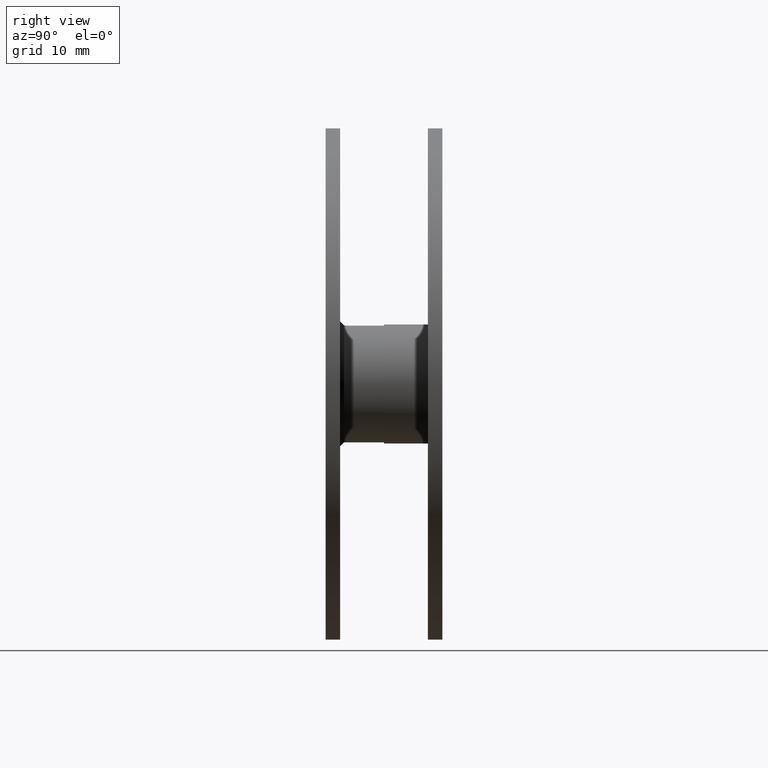
[diagram: clean part render]
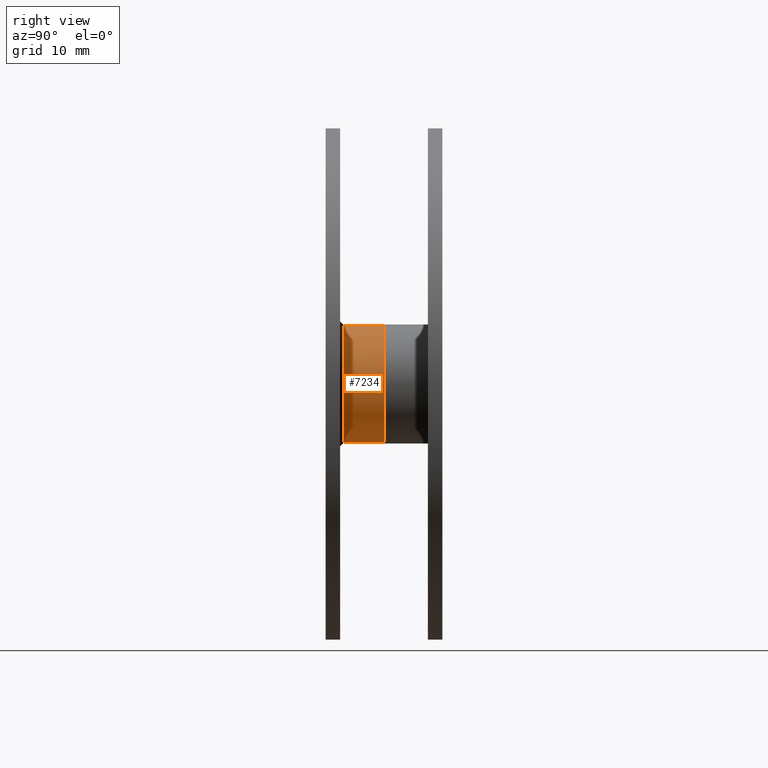
[diagram: same view with one face highlighted and labeled with its STEP entity id]
A machine part, right view. The second image highlights one B-rep face of the part: STEP entity #7234.
In plain terms, the highlighted cylindrical surface (partial cylindrical patch) has radius 8 mm, axis along (-0, -1, -0).
Its self-contained STEP definition (entity closure, byte-faithful):
#97 = DIRECTION ( 'NONE',  ( -0.000000000000000000, -1.000000000000000000, -0.000000000000000000 ) ) ;
#329 = CARTESIAN_POINT ( 'NONE',  ( 9.797174393178825657E-16, 0.000000000000000000, 8.000000000000000000 ) ) ;
#1054 = CIRCLE ( 'NONE', #5210, 8.000000000000000000 ) ;
#1672 = CYLINDRICAL_SURFACE ( 'NONE', #9978, 8.000000000000000000 ) ;
#2337 = CIRCLE ( 'NONE', #4602, 8.000000000000000000 ) ;
#2781 = ORIENTED_EDGE ( 'NONE', *, *, #4874, .F. ) ;
#3116 = VERTEX_POINT ( 'NONE', #5294 ) ;
#3444 = FACE_OUTER_BOUND ( 'NONE', #11183, .T. ) ;
#3783 = ORIENTED_EDGE ( 'NONE', *, *, #9125, .T. ) ;
#4384 = VERTEX_POINT ( 'NONE', #10853 ) ;
#4571 = ORIENTED_EDGE ( 'NONE', *, *, #11840, .T. ) ;
#4602 = AXIS2_PLACEMENT_3D ( 'NONE', #11508, #97, #6833 ) ;
#4653 = DIRECTION ( 'NONE',  ( 0.000000000000000000, 0.000000000000000000, 1.000000000000000000 ) ) ;
#4874 = EDGE_CURVE ( 'NONE', #9351, #4384, #11947, .T. ) ;
#5133 = DIRECTION ( 'NONE',  ( -0.000000000000000000, -1.000000000000000000, -0.000000000000000000 ) ) ;
#5210 = AXIS2_PLACEMENT_3D ( 'NONE', #6437, #7132, #4653 ) ;
#5294 = CARTESIAN_POINT ( 'NONE',  ( 9.797174393178825657E-16, 8.000000000000000000, 8.000000000000000000 ) ) ;
#5614 = DIRECTION ( 'NONE',  ( 0.000000000000000000, 0.000000000000000000, -1.000000000000000000 ) ) ;
#6437 = CARTESIAN_POINT ( 'NONE',  ( 0.000000000000000000, 2.499999999999998224, 0.000000000000000000 ) ) ;
#6833 = DIRECTION ( 'NONE',  ( 0.000000000000000000, 0.000000000000000000, -1.000000000000000000 ) ) ;
#6856 = CARTESIAN_POINT ( 'NONE',  ( 0.000000000000000000, 8.000000000000000000, -8.000000000000000000 ) ) ;
#7132 = DIRECTION ( 'NONE',  ( 0.000000000000000000, 1.000000000000000000, 0.000000000000000000 ) ) ;
#7234 = ADVANCED_FACE ( 'NONE', ( #3444 ), #1672, .T. ) ;
#7551 = CARTESIAN_POINT ( 'NONE',  ( 0.000000000000000000, 0.000000000000000000, 0.000000000000000000 ) ) ;
#7945 = VERTEX_POINT ( 'NONE', #8068 ) ;
#8068 = CARTESIAN_POINT ( 'NONE',  ( 9.797174393178825657E-16, 2.499999999999998224, 8.000000000000000000 ) ) ;
#8655 = VECTOR ( 'NONE', #8814, 1000.000000000000000 ) ;
#8814 = DIRECTION ( 'NONE',  ( -0.000000000000000000, -1.000000000000000000, -0.000000000000000000 ) ) ;
#9125 = EDGE_CURVE ( 'NONE', #7945, #4384, #1054, .T. ) ;
#9351 = VERTEX_POINT ( 'NONE', #6856 ) ;
#9738 = CARTESIAN_POINT ( 'NONE',  ( 0.000000000000000000, 0.000000000000000000, -8.000000000000000000 ) ) ;
#9978 = AXIS2_PLACEMENT_3D ( 'NONE', #7551, #12343, #5614 ) ;
#10609 = LINE ( 'NONE', #329, #11044 ) ;
#10853 = CARTESIAN_POINT ( 'NONE',  ( 0.000000000000000000, 2.499999999999998224, -8.000000000000000000 ) ) ;
#10879 = ORIENTED_EDGE ( 'NONE', *, *, #11198, .T. ) ;
#11044 = VECTOR ( 'NONE', #5133, 1000.000000000000000 ) ;
#11183 = EDGE_LOOP ( 'NONE', ( #4571, #10879, #3783, #2781 ) ) ;
#11198 = EDGE_CURVE ( 'NONE', #3116, #7945, #10609, .T. ) ;
#11508 = CARTESIAN_POINT ( 'NONE',  ( 0.000000000000000000, 8.000000000000000000, 0.000000000000000000 ) ) ;
#11840 = EDGE_CURVE ( 'NONE', #9351, #3116, #2337, .T. ) ;
#11947 = LINE ( 'NONE', #9738, #8655 ) ;
#12343 = DIRECTION ( 'NONE',  ( -0.000000000000000000, -1.000000000000000000, -0.000000000000000000 ) ) ;